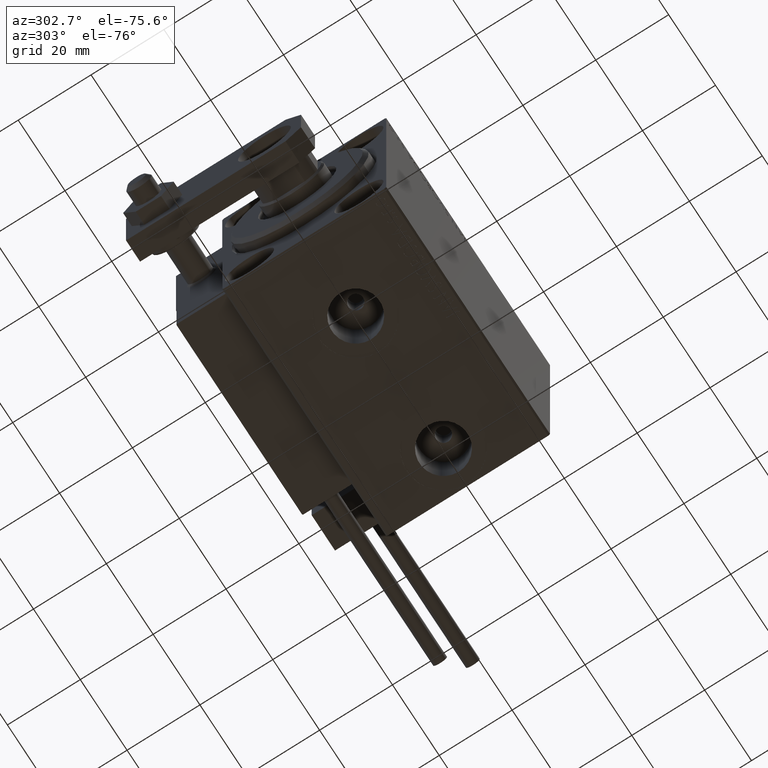
[diagram: clean part render]
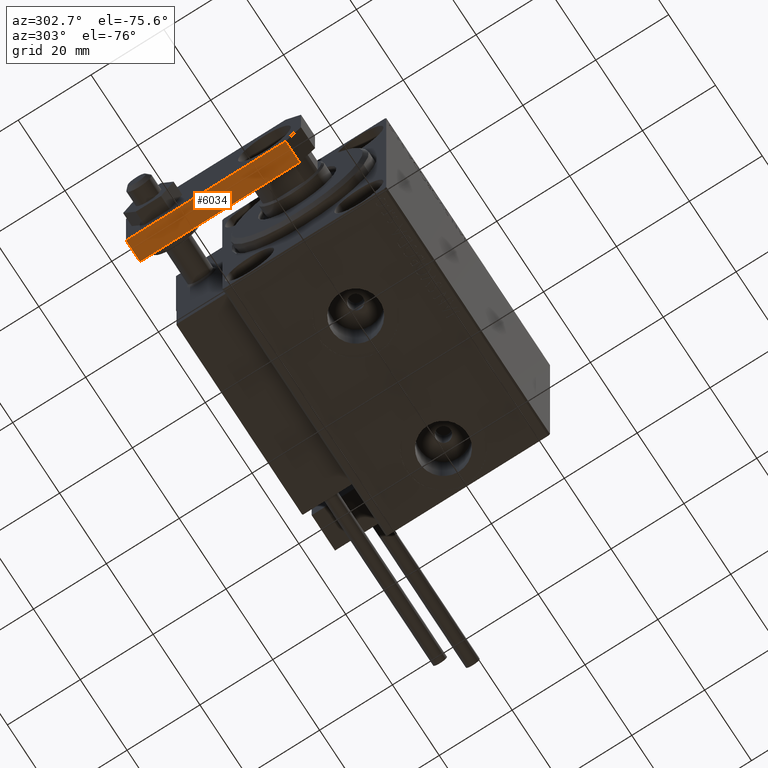
[diagram: same view with one face highlighted and labeled with its STEP entity id]
A machine part, auxiliary view. The second image highlights one B-rep face of the part: STEP entity #6034.
In plain terms, the highlighted planar face has unit normal (0, -0, 1).
Its self-contained STEP definition (entity closure, byte-faithful):
#11 = EDGE_CURVE ( 'NONE', #47157, #49651, #43920, .T. ) ;
#688 = DIRECTION ( 'NONE',  ( -1.084202172485504434E-16, -1.000000000000000000, 0.000000000000000000 ) ) ;
#3414 = PLANE ( 'NONE',  #19952 ) ;
#4213 = CARTESIAN_POINT ( 'NONE',  ( -10.00000000000000533, 4.240000000000021529, 6.000000000000000000 ) ) ;
#4217 = ORIENTED_EDGE ( 'NONE', *, *, #11, .T. ) ;
#4665 = CARTESIAN_POINT ( 'NONE',  ( -10.00000000000000000, 48.00000000000000000, 6.000000000000000000 ) ) ;
#5216 = CARTESIAN_POINT ( 'NONE',  ( -10.00000000000000533, 4.240000000000021529, 6.000000000000000000 ) ) ;
#5297 = EDGE_CURVE ( 'NONE', #39527, #50110, #41979, .T. ) ;
#6034 = ADVANCED_FACE ( 'NONE', ( #38276 ), #3414, .F. ) ;
#7263 = VECTOR ( 'NONE', #44799, 1000.000000000000000 ) ;
#7449 = ORIENTED_EDGE ( 'NONE', *, *, #41488, .F. ) ;
#11426 = CARTESIAN_POINT ( 'NONE',  ( -10.00000000000000533, 4.240000000000021529, 0.000000000000000000 ) ) ;
#13459 = ORIENTED_EDGE ( 'NONE', *, *, #25743, .T. ) ;
#16685 = VECTOR ( 'NONE', #50366, 1000.000000000000000 ) ;
#17293 = CARTESIAN_POINT ( 'NONE',  ( -10.00000000000000000, 48.00000000000000000, 6.000000000000000000 ) ) ;
#19815 = VECTOR ( 'NONE', #20747, 1000.000000000000000 ) ;
#19952 = AXIS2_PLACEMENT_3D ( 'NONE', #34479, #33984, #46171 ) ;
#20347 = CARTESIAN_POINT ( 'NONE',  ( -10.00000000000000000, 48.00000000000000000, 0.000000000000000000 ) ) ;
#20747 = DIRECTION ( 'NONE',  ( 0.000000000000000000, 0.000000000000000000, 1.000000000000000000 ) ) ;
#25743 = EDGE_CURVE ( 'NONE', #50110, #47157, #35329, .T. ) ;
#25921 = EDGE_LOOP ( 'NONE', ( #13459, #4217, #7449, #28065 ) ) ;
#28065 = ORIENTED_EDGE ( 'NONE', *, *, #5297, .T. ) ;
#33984 = DIRECTION ( 'NONE',  ( 1.000000000000000000, -1.084202172485504434E-16, 0.000000000000000000 ) ) ;
#34479 = CARTESIAN_POINT ( 'NONE',  ( -10.00000000000000000, 48.00000000000000000, 6.000000000000000000 ) ) ;
#35329 = LINE ( 'NONE', #42961, #48005 ) ;
#38276 = FACE_OUTER_BOUND ( 'NONE', #25921, .T. ) ;
#38904 = CARTESIAN_POINT ( 'NONE',  ( -10.00000000000000000, 48.00000000000000000, 6.000000000000000000 ) ) ;
#39527 = VERTEX_POINT ( 'NONE', #4665 ) ;
#40711 = LINE ( 'NONE', #17293, #7263 ) ;
#41488 = EDGE_CURVE ( 'NONE', #39527, #49651, #40711, .T. ) ;
#41979 = LINE ( 'NONE', #38904, #16685 ) ;
#42961 = CARTESIAN_POINT ( 'NONE',  ( -10.00000000000000000, 48.00000000000000000, 0.000000000000000000 ) ) ;
#43920 = LINE ( 'NONE', #5216, #19815 ) ;
#44799 = DIRECTION ( 'NONE',  ( -1.084202172485504434E-16, -1.000000000000000000, 0.000000000000000000 ) ) ;
#46171 = DIRECTION ( 'NONE',  ( 1.084202172485504434E-16, 1.000000000000000000, 0.000000000000000000 ) ) ;
#47157 = VERTEX_POINT ( 'NONE', #11426 ) ;
#48005 = VECTOR ( 'NONE', #688, 1000.000000000000000 ) ;
#49651 = VERTEX_POINT ( 'NONE', #4213 ) ;
#50110 = VERTEX_POINT ( 'NONE', #20347 ) ;
#50366 = DIRECTION ( 'NONE',  ( -0.000000000000000000, -0.000000000000000000, -1.000000000000000000 ) ) ;